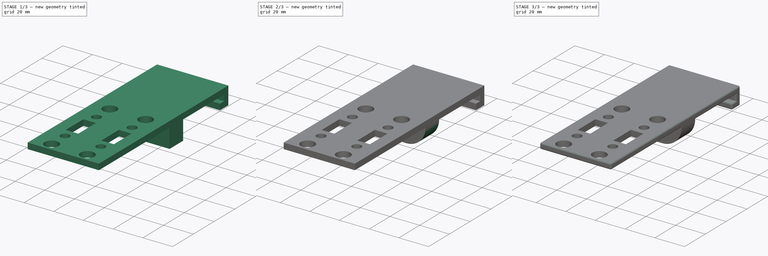
[diagram: build sequence overview — one tinted view per stage of 3, left to right]
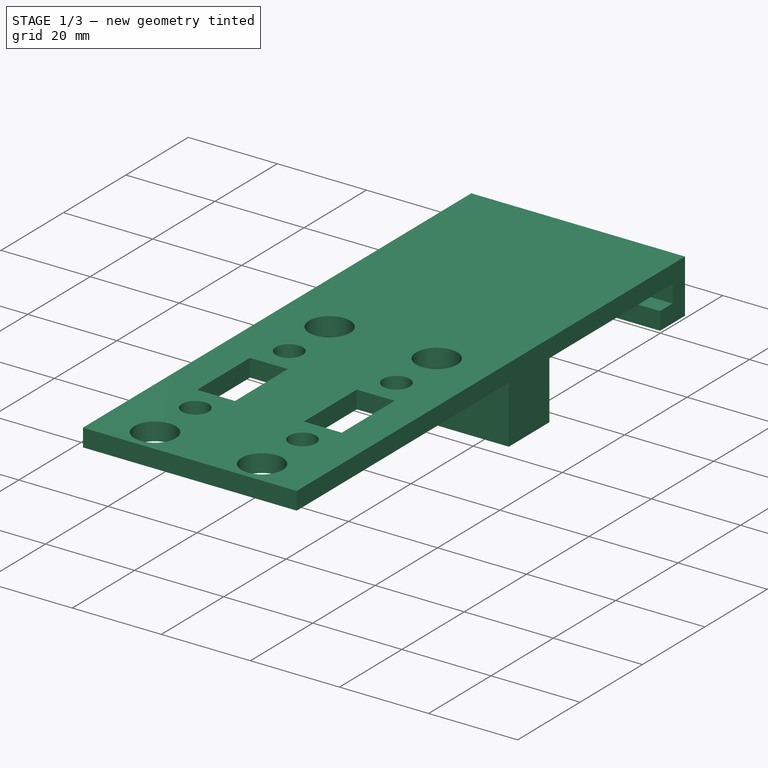
[diagram: stage 1 of 3 — iso view after this stage's code; geometry added in this stage tinted green]
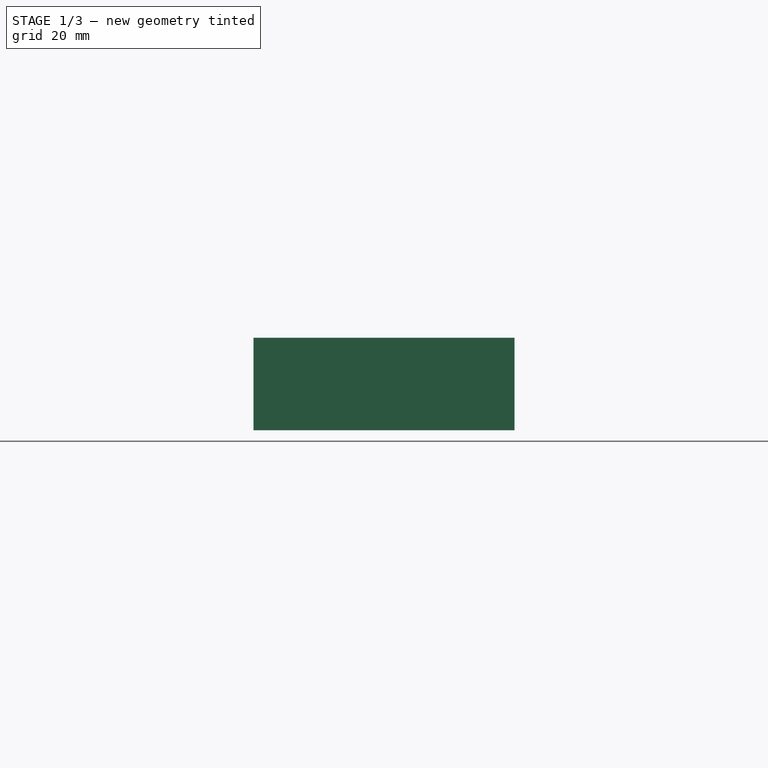
[diagram: stage 1 of 3 — front view after this stage's code; geometry added in this stage tinted green]
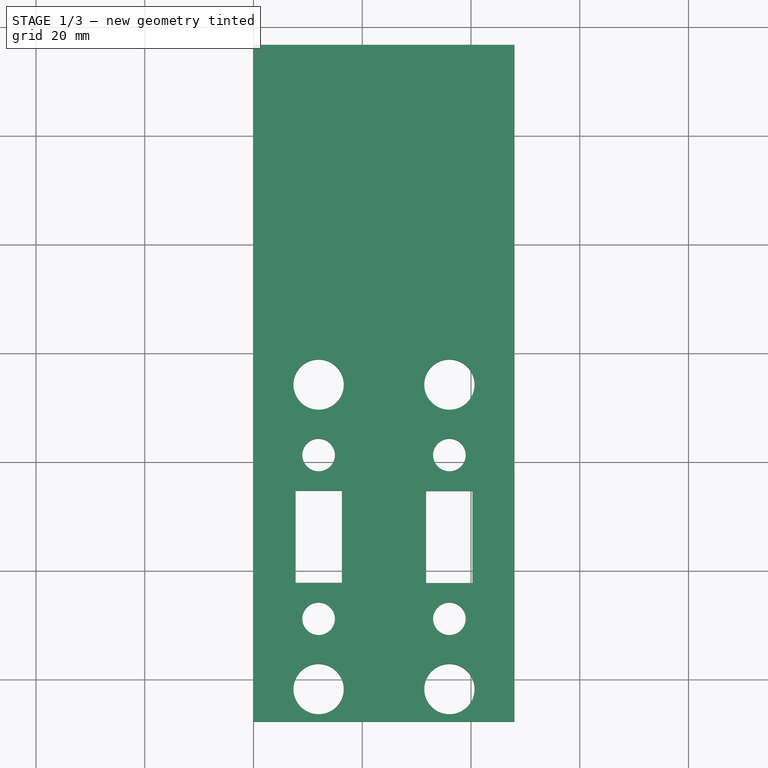
[diagram: stage 1 of 3 — top view after this stage's code; geometry added in this stage tinted green]
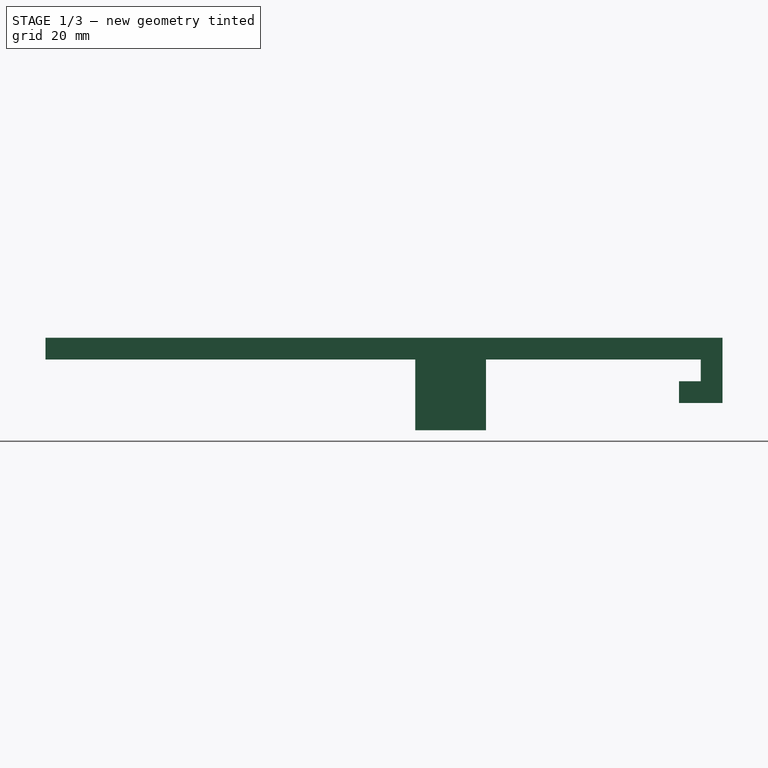
[diagram: stage 1 of 3 — right view after this stage's code; geometry added in this stage tinted green]
FCSTD DOCUMENT  (FreeCAD 0.21R33694 (Git))
Label: Z_Axis_Top_Mount
License: All rights reserved
LicenseURL: http://en.wikipedia.org/wiki/All_rights_reserved
objects: Sketcher::SketchObject×4, PartDesign::Pocket×3, PartDesign::Fillet×2, PartDesign::Pad×1, PartDesign::Body×1
note: 17 computed .brp shape members not serialized (recipe doc carries the construction recipe); baked Part::Feature solids carry a one-line shape summary decoded from their .brp

FEATURE [Sketcher::SketchObject] Sketch002
  FullyConstrained = true
  MapMode = 5
  Placement = pos=(24,0,0) rot=(0.57735,0.57735,0.57735;2.0944rad)
  sketch-geometry (14):
    g0: LineSegment StartX=0 StartY=4 StartZ=0 EndX=56.5 EndY=4 EndZ=0
    g1: LineSegment StartX=56.5 StartY=4 StartZ=0 EndX=56.5 EndY=-8 EndZ=0
    g2: LineSegment StartX=56.5 StartY=-8 StartZ=0 EndX=48.5 EndY=-8 EndZ=0
    g3: LineSegment StartX=48.5 StartY=-8 StartZ=0 EndX=48.5 EndY=-4 EndZ=0
    g4: LineSegment StartX=48.5 StartY=-4 StartZ=0 EndX=52.5 EndY=-4 EndZ=0
    g5: LineSegment StartX=52.5 StartY=-4 StartZ=0 EndX=52.5 EndY=0 EndZ=0
    g6: LineSegment StartX=52.5 StartY=0 StartZ=0 EndX=13 EndY=0 EndZ=0
    g7: LineSegment StartX=13 StartY=0 StartZ=0 EndX=13 EndY=-13 EndZ=0
    g8: LineSegment StartX=13 StartY=-13 StartZ=0 EndX=0 EndY=-13 EndZ=0
    g9: LineSegment StartX=0 StartY=-13 StartZ=0 EndX=0 EndY=0 EndZ=0
    g10: LineSegment StartX=0 StartY=4 StartZ=0 EndX=-68 EndY=4 EndZ=0
    g11: LineSegment StartX=-68 StartY=4 StartZ=0 EndX=-68 EndY=0 EndZ=0
    g12: LineSegment StartX=-68 StartY=0 StartZ=0 EndX=0 EndY=0 EndZ=0
    g13: LineSegment StartX=0 StartY=0 StartZ=0 EndX=0 EndY=4 EndZ=0
  constraints (40):
    c: Horizontal(g0)
    c: Coincident(g0,g1)
    c: Coincident(g1,g2)
    c: Horizontal(g2)
    c: Coincident(g2,g3)
    c: Vertical(g3)
    c: Coincident(g3,g4)
    c: Horizontal(g4)
    c: Coincident(g4,g5)
    c: PointOnObject(g5,g-1)
    c: Coincident(g5,g6)
    c: Vertical(g1)
    c: Vertical(g5)
    c: DistanceX(g4,g4) = 4
    c: DistanceY(g3,g3) = 4
    c: DistanceX(g2,g2) = 8
    c: DistanceY(g1,g1) = 12
    c: Coincident(g7,g8)
    c: Horizontal(g8)
    c: Vertical(g7)
    c: Equal(g7,g8)
    c: DistanceX(g8,g8) = 13
    c: Coincident(g6,g7)
    c: PointOnObject(g6,g-1)
    c: Coincident(g9,g8)
    c: Vertical(g9)
    c: Coincident(g10,g11)
    c: Coincident(g11,g12)
    c: Coincident(g12,g13)
    c: Coincident(g13,g10)
    c: Horizontal(g10)
    c: Horizontal(g12)
    c: Vertical(g11)
    c: Vertical(g13)
    c: Coincident(g10,g0)
    c: DistanceX(g10,g10) = 68
    c: Coincident(g9,g12)
    c: Coincident(g9,g-1)
    c: DistanceX(g6,g6) = 39.5
    c: DistanceY(g5,g5) = 4
FEATURE [PartDesign::Pad] Pad
  Direction = (1,0,0)
  Length = 48
  Length2 = 10
  Midplane = true
  Placement = pos=(24,0,0) rot=(0.57735,0.57735,0.57735;2.0944rad)
  Profile = -> Sketch002
  ReferenceAxis = -> Sketch002 [N_Axis]
  Type = 0
FEATURE [Sketcher::SketchObject] Sketch
  AttachmentOffset = pos=(34,0,0) rot=(0,0,-1;1.5708rad)
  FullyConstrained = true
  MapMode = 5
  Placement = pos=(24,-34,4) rot=(0,0,-1;3.14159rad)
  Support = -> [Pad]
  expr: .AttachmentOffset.Rotation.Yaw = -90 °
  sketch-geometry (20):
    g0: Circle CenterX=-12.025 CenterY=28 CenterZ=0 NormalX=0 NormalY=0 NormalZ=1 AngleXU=0 Radius=4.625
    g1: Circle CenterX=12.025 CenterY=28 CenterZ=0 NormalX=0 NormalY=0 NormalZ=1 AngleXU=0 Radius=4.625
    g2: Circle CenterX=12.025 CenterY=-28 CenterZ=0 NormalX=0 NormalY=0 NormalZ=1 AngleXU=0 Radius=4.625
    g3: Circle CenterX=-12.025 CenterY=-28 CenterZ=0 NormalX=0 NormalY=0 NormalZ=1 AngleXU=0 Radius=4.625
    g4: LineSegment StartX=-16.25 StartY=8.5 StartZ=0 EndX=-7.75214 EndY=8.5 EndZ=0
    g5: LineSegment StartX=-7.75214 StartY=8.5 StartZ=0 EndX=-7.75214 EndY=-8.4564 EndZ=0
    g6: LineSegment StartX=-7.75214 StartY=-8.4564 StartZ=0 EndX=-16.25 EndY=-8.4564 EndZ=0
    g7: LineSegment StartX=-16.25 StartY=-8.4564 StartZ=0 EndX=-16.25 EndY=8.5 EndZ=0
    g8: LineSegment StartX=7.75214 StartY=8.4564 StartZ=0 EndX=16.25 EndY=8.4564 EndZ=0
    g9: LineSegment StartX=16.25 StartY=8.4564 StartZ=0 EndX=16.25 EndY=-8.5 EndZ=0
    g10: LineSegment StartX=16.25 StartY=-8.5 StartZ=0 EndX=7.75214 EndY=-8.5 EndZ=0
    g11: LineSegment StartX=7.75214 StartY=-8.5 StartZ=0 EndX=7.75214 EndY=8.4564 EndZ=0
    g12: Circle CenterX=-12.025 CenterY=15.0599 CenterZ=0 NormalX=0 NormalY=0 NormalZ=1 AngleXU=0 Radius=3
    g13: Circle CenterX=12.025 CenterY=15.0599 CenterZ=0 NormalX=0 NormalY=0 NormalZ=1 AngleXU=0 Radius=3
    g14: Circle CenterX=12.025 CenterY=-15.0599 CenterZ=0 NormalX=0 NormalY=0 NormalZ=1 AngleXU=0 Radius=3
    g15: Circle CenterX=-12.025 CenterY=-15.0599 CenterZ=0 NormalX=0 NormalY=0 NormalZ=1 AngleXU=0 Radius=3
    g16: LineSegment StartX=-24 StartY=34 StartZ=0 EndX=24 EndY=34 EndZ=0
    g17: LineSegment StartX=24 StartY=34 StartZ=0 EndX=24 EndY=-34 EndZ=0
    g18: LineSegment StartX=24 StartY=-34 StartZ=0 EndX=-24 EndY=-34 EndZ=0
    g19: LineSegment StartX=-24 StartY=-34 StartZ=0 EndX=-24 EndY=34 EndZ=0
  constraints (52):
    c: Symmetric(g2,g0,g-1)
    c: Symmetric(g1,g3,g-1)
    c: Symmetric(g1,g0,g-2)
    c: Equal(g1,g0)
    c: Equal(g0,g3)
    c: Equal(g3,g2)
    c: Diameter(g1) = 9.25
    c: DistanceX(g1) = 12.025
    c: DistanceY(g1) = 28
    c: Coincident(g4,g5)
    c: Coincident(g5,g6)
    c: Coincident(g6,g7)
    c: Coincident(g7,g4)
    c: Horizontal(g4)
    c: Horizontal(g6)
    c: Vertical(g5)
    c: Vertical(g7)
    c: Coincident(g8,g9)
    c: Coincident(g9,g10)
    c: Coincident(g10,g11)
    c: Coincident(g11,g8)
    c: Horizontal(g8)
    c: Horizontal(g10)
    c: Vertical(g9)
    c: Vertical(g11)
    c: Symmetric(g9,g4,g-1)
    c: Symmetric(g5,g8,g-1)
    c: DistanceX(g8) = 7.75214
    c: DistanceY(g8) = 8.4564
    c: DistanceX(g9) = 16.25
    c: DistanceY(g9) = -8.5
    c: Symmetric(g13,g15,g-1)
    c: Symmetric(g12,g14,g-1)
    c: Symmetric(g13,g12,g-2)
    c: Equal(g14,g13)
    c: Equal(g13,g12)
    c: Equal(g12,g15)
    c: Diameter(g13) = 6
    c: DistanceX(g12) = -12.025
    c: DistanceY(g12) = 15.0599
    c: Coincident(g16,g17)
    c: Coincident(g17,g18)
    c: Coincident(g18,g19)
    c: Coincident(g19,g16)
    c: Horizontal(g16)
    c: Horizontal(g18)
    c: Vertical(g17)
    c: Vertical(g19)
    c: DistanceX(g16,g-1) = 24
    c: DistanceY(g16,g-1) = -34
    c: DistanceX(g17) = 24
    c: DistanceY(g17) = -34
FEATURE [PartDesign::Pocket] Pocket
  BaseFeature = -> Pad
  Direction = (1e-16,0,-1)
  Length = 0
  Length2 = 5
  Placement = pos=(24,0,0) rot=(0.57735,0.57735,0.57735;2.0944rad)
  Profile = -> Sketch
  ReferenceAxis = -> Sketch [N_Axis]
  Type = 3
  UpToFace = -> Pad [Face11]
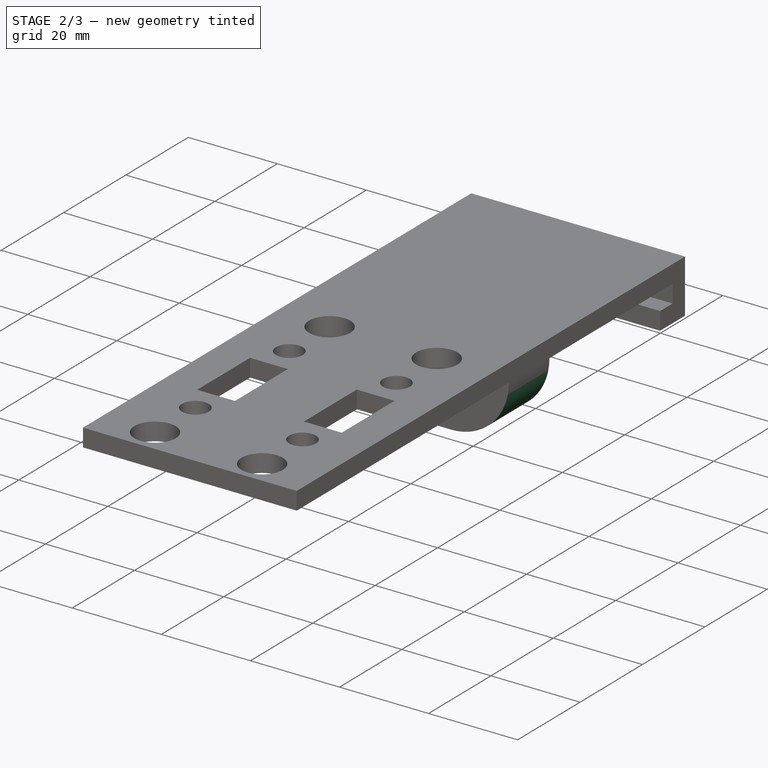
[diagram: stage 2 of 3 — iso view after this stage's code; geometry added in this stage tinted green]
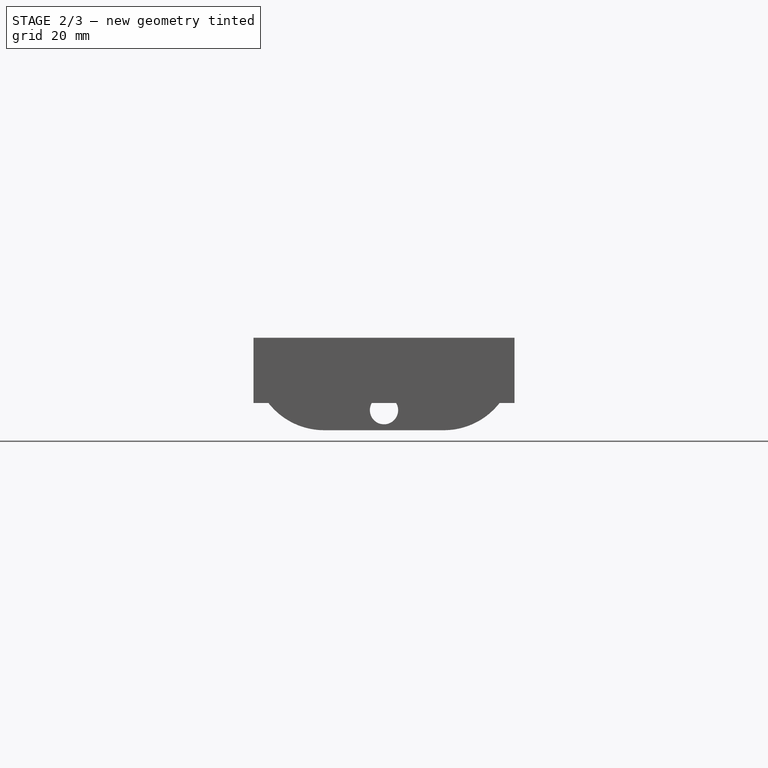
[diagram: stage 2 of 3 — front view after this stage's code; geometry added in this stage tinted green]
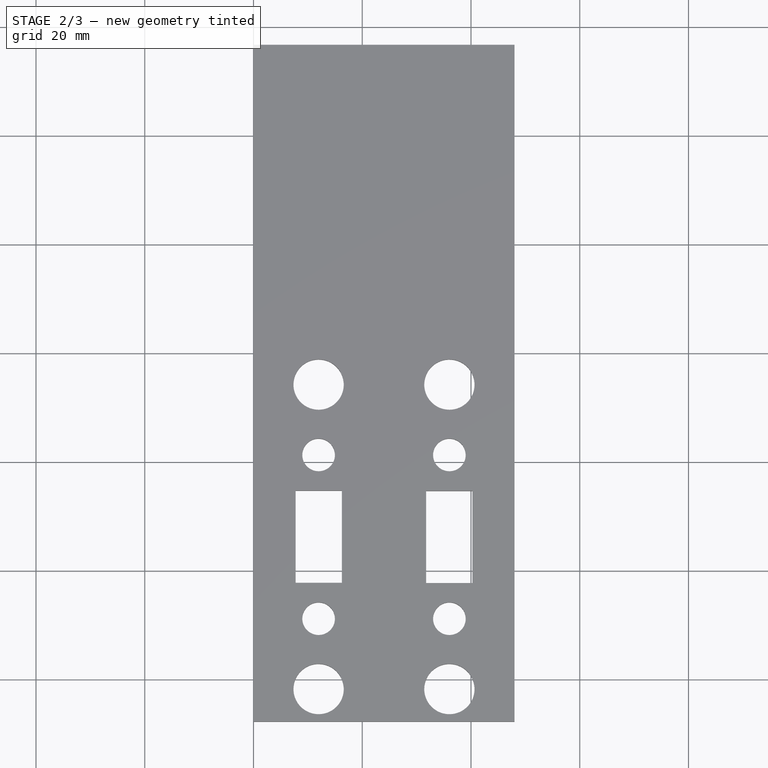
[diagram: stage 2 of 3 — top view after this stage's code; geometry added in this stage tinted green]
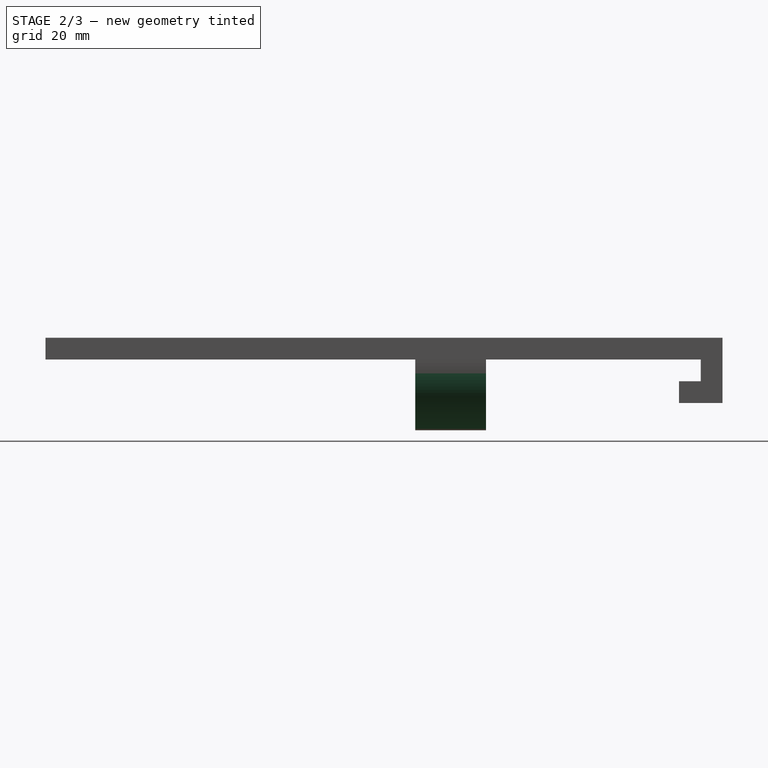
[diagram: stage 2 of 3 — right view after this stage's code; geometry added in this stage tinted green]
FEATURE [Sketcher::SketchObject] Sketch003
  FullyConstrained = false
  MapMode = 5
  Placement = pos=(24,0,0) rot=(0.57735,0.57735,-0.57735;2.0944rad)
  Support = -> [Pocket]
  sketch-geometry (2):
    g0: LineSegment StartX=0 StartY=0 StartZ=0 EndX=9.31334 EndY=0 EndZ=0
    g1: Circle CenterX=9.31334 CenterY=0 CenterZ=0 NormalX=0 NormalY=0 NormalZ=1 AngleXU=0 Radius=2.6
  constraints (4):
    c: Coincident(g0,g-1)
    c: PointOnObject(g0,g-1)
    c: Coincident(g1,g0)
    c: Diameter(g1) = 5.2
FEATURE [PartDesign::Pocket] Pocket001
  BaseFeature = -> Pocket
  Direction = (0,1,0)
  Length = 0
  Length2 = 5
  Placement = pos=(24,0,0) rot=(0.57735,0.57735,0.57735;2.0944rad)
  Profile = -> Sketch003
  ReferenceAxis = -> Sketch003 [N_Axis]
  Type = 3
  UpToFace = -> Pocket [Face28]
FEATURE [PartDesign::Fillet] Fillet
  Base = -> Pocket001 [Edge43,Edge33]
  BaseFeature = -> Pocket001
  Placement = pos=(24,0,0) rot=(0.57735,0.57735,0.57735;2.0944rad)
  Radius = 13
  SupportTransform = false
  UseAllEdges = false
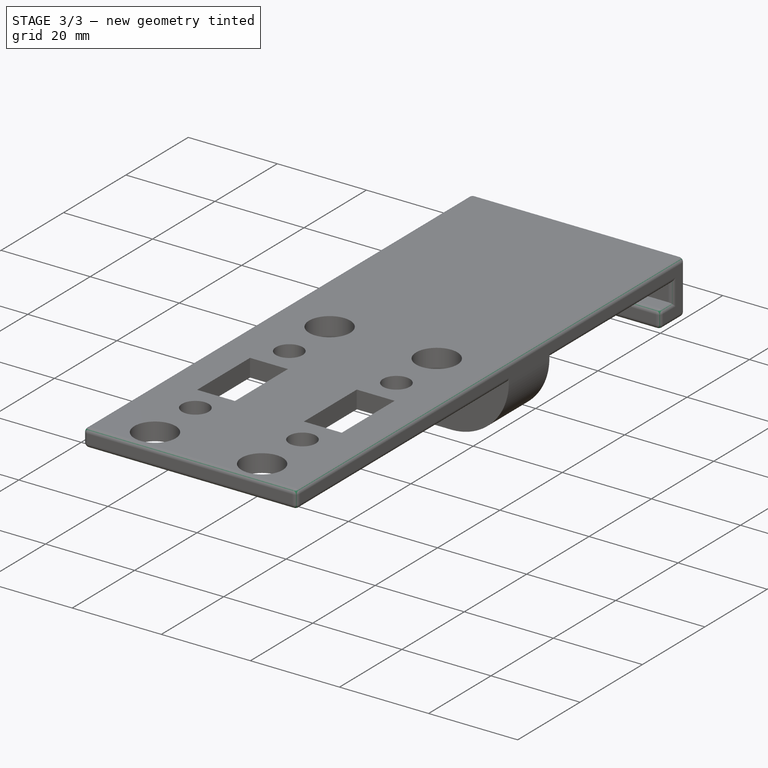
[diagram: stage 3 of 3 — iso view after this stage's code; geometry added in this stage tinted green]
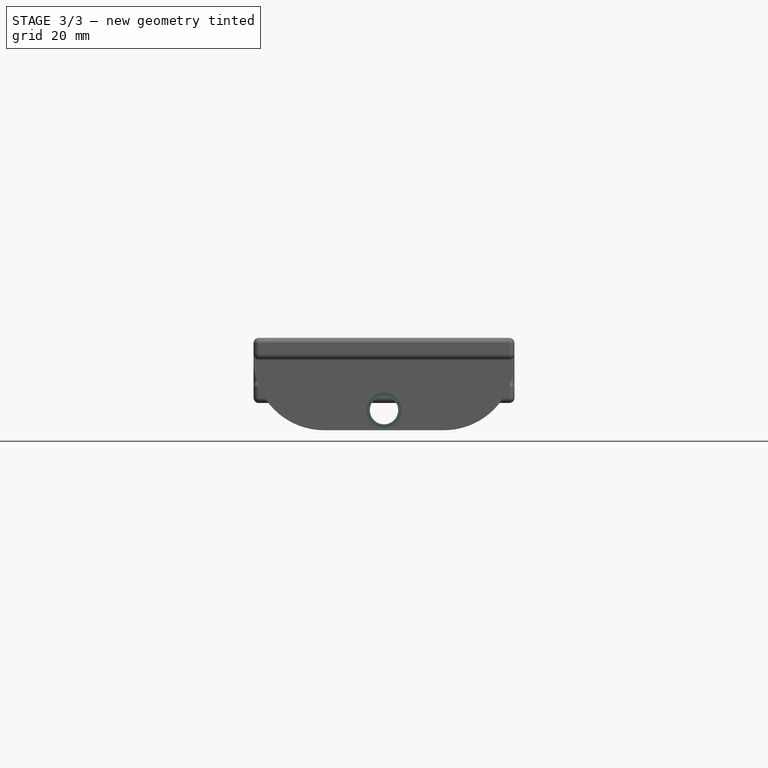
[diagram: stage 3 of 3 — front view after this stage's code; geometry added in this stage tinted green]
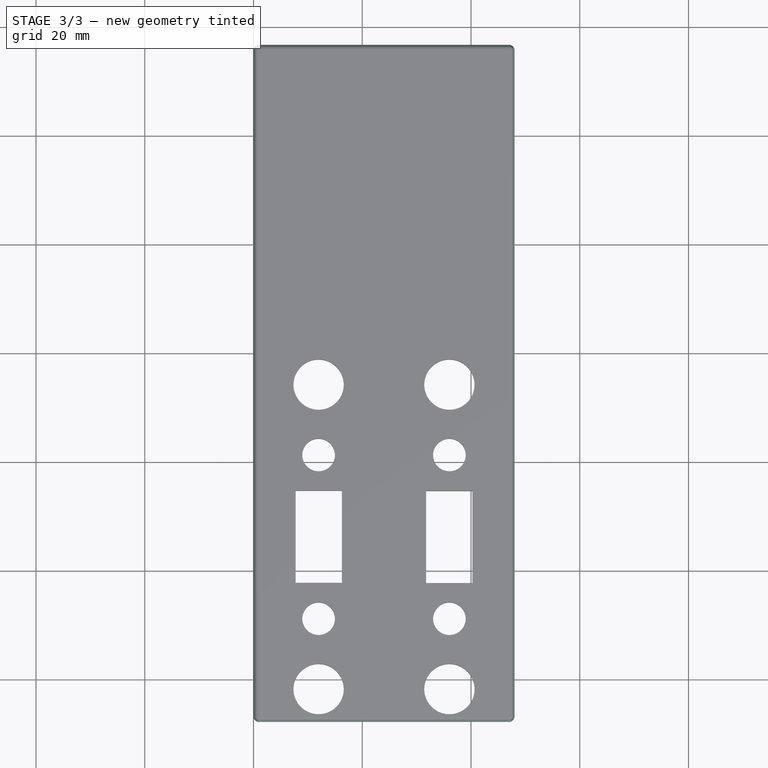
[diagram: stage 3 of 3 — top view after this stage's code; geometry added in this stage tinted green]
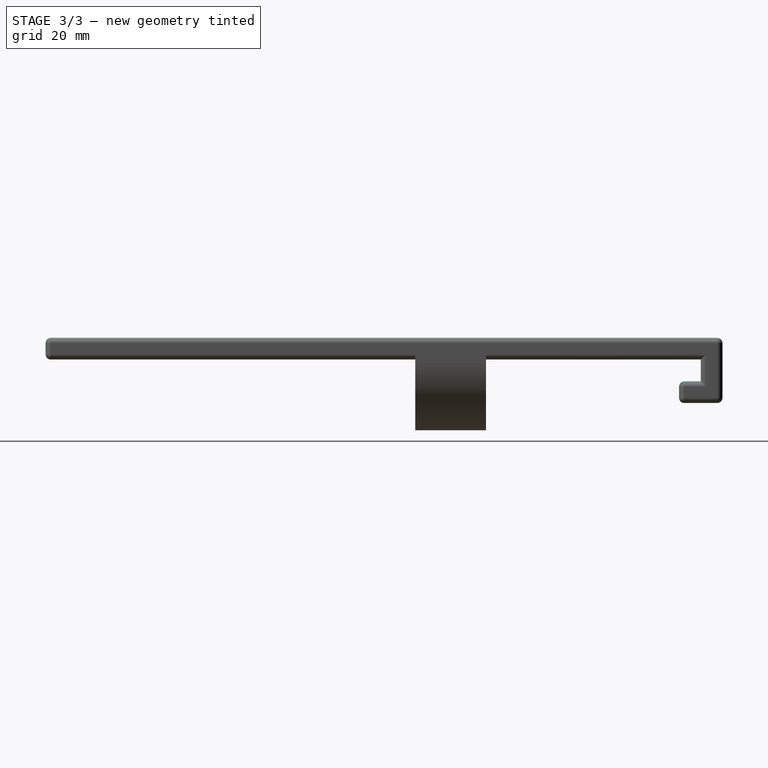
[diagram: stage 3 of 3 — right view after this stage's code; geometry added in this stage tinted green]
FEATURE [PartDesign::Fillet] Fillet001
  Base = -> Fillet [Face12,Face11,Face1,Face16,Face6,Face9]
  BaseFeature = -> Fillet
  Placement = pos=(24,0,0) rot=(0.57735,0.57735,0.57735;2.0944rad)
  Radius = 1
  SupportTransform = false
  UseAllEdges = false
FEATURE [Sketcher::SketchObject] Sketch004
  ExternalGeometry = -> [Fillet001]
  FullyConstrained = true
  MapMode = 5
  Placement = pos=(24,0,0) rot=(0.57735,0.57735,-0.57735;2.0944rad)
  Support = -> [Fillet001]
  sketch-geometry (1):
    g0: Circle CenterX=9.31334 CenterY=0 CenterZ=0 NormalX=0 NormalY=0 NormalZ=1 AngleXU=0 Radius=3.2
  constraints (2):
    c: Coincident(g0,g-3)
    c: Diameter(g0) = 6.4
FEATURE [PartDesign::Pocket] Pocket002
  BaseFeature = -> Fillet001
  Direction = (0,1,-4e-16)
  Length = 3
  Length2 = 5
  Placement = pos=(24,0,0) rot=(0.57735,0.57735,0.57735;2.0944rad)
  Profile = -> Sketch004
  ReferenceAxis = -> Sketch004 [N_Axis]
  Type = 0
FEATURE [PartDesign::Body] Body
  Group = -> [Sketch002,Pad,Sketch,Pocket,Sketch003,Pocket001,Fillet,Fillet001,Sketch004,Pocket002]
  Origin = -> Origin
  Tip = -> Pocket002
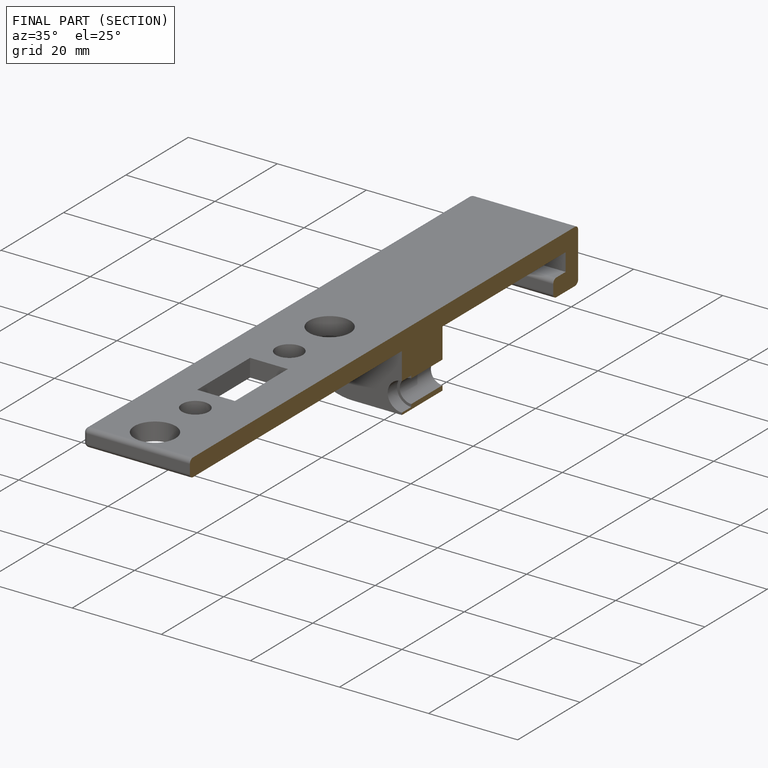
[diagram: finished part — half-section view (interior)]
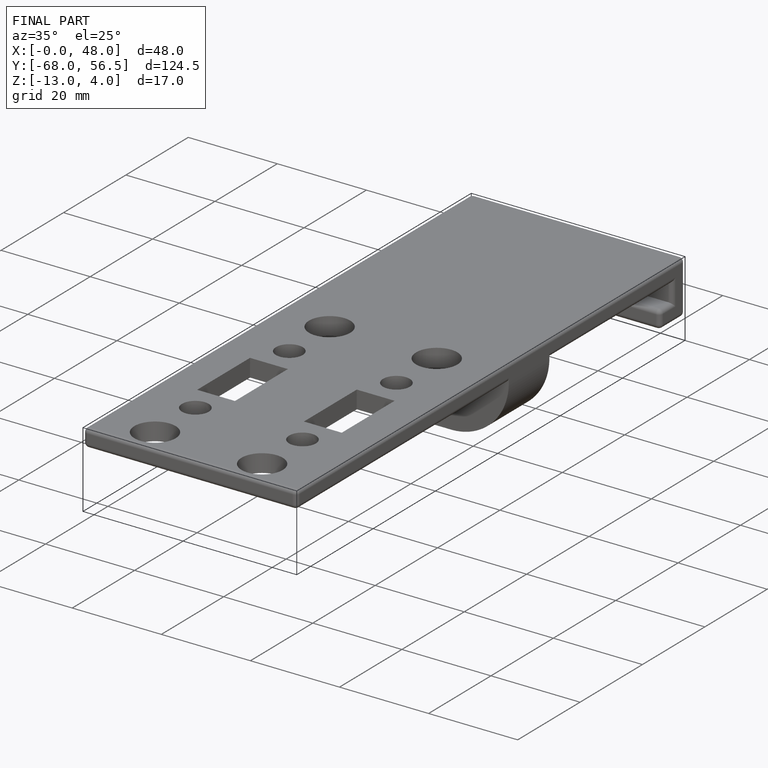
[diagram: finished part — iso view with bounding-box wireframe]
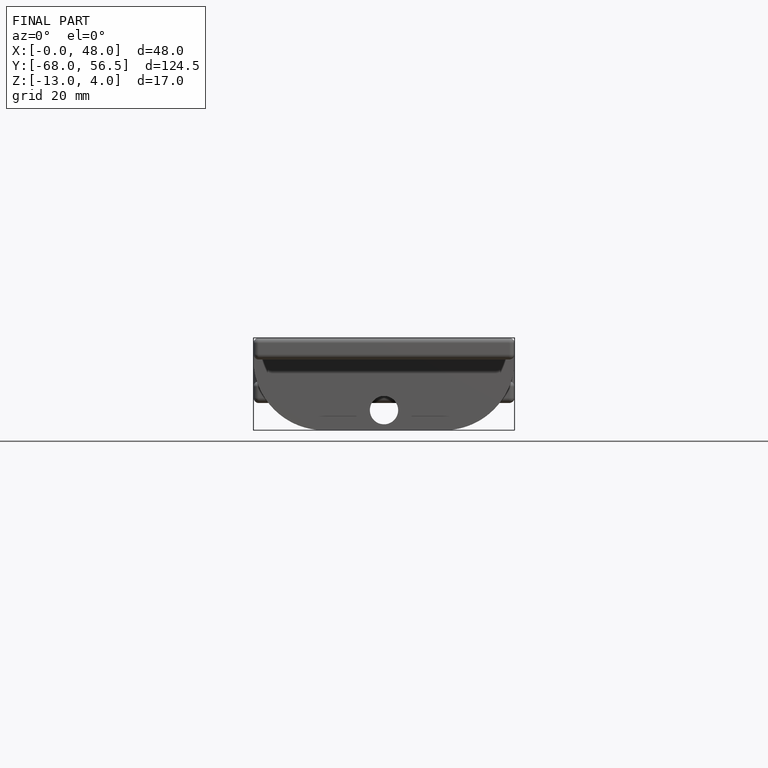
[diagram: finished part — front view with bounding-box wireframe]
